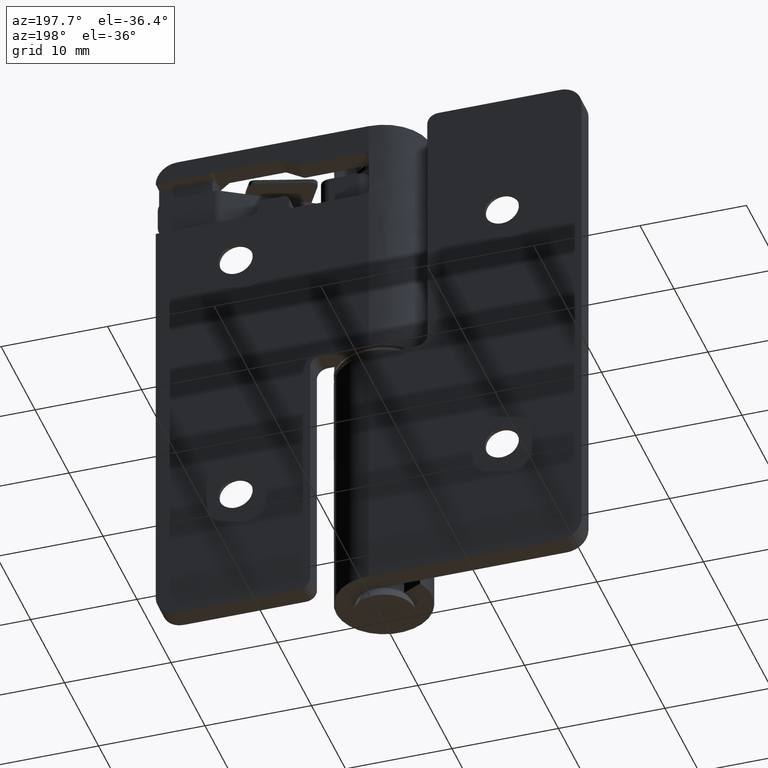
[diagram: clean part render]
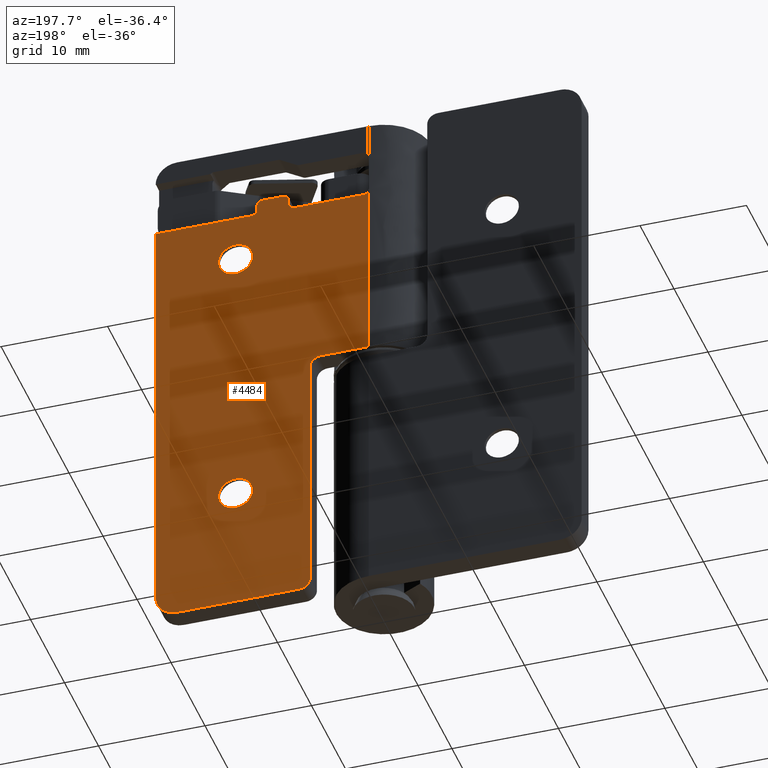
[diagram: same view with one face highlighted and labeled with its STEP entity id]
A machine part, auxiliary view. The second image highlights one B-rep face of the part: STEP entity #4484.
In plain terms, the highlighted face is a freeform B-spline surface patch.
Its self-contained STEP definition (entity closure, byte-faithful):
#2897=CARTESIAN_POINT('',(14.097015677449971,4.500000000000000,12.097677663364079));
#2898=VERTEX_POINT('',#2897);
#2899=CARTESIAN_POINT('',(12.499999999990701,4.500000000000000,10.400000000009079));
#2900=VERTEX_POINT('',#2899);
#2901=CARTESIAN_POINT('',(14.097015677449969,4.500000000000000,12.097677663364077));
#2902=CARTESIAN_POINT('',(14.099999999981623,4.500000000000000,12.048884421332048));
#2903=CARTESIAN_POINT('',(14.099999999981620,4.500000000000000,12.0));
#2904=CARTESIAN_POINT('',(14.099999999981623,4.500000000000000,10.400000000009076));
#2905=CARTESIAN_POINT('',(12.499999999990701,4.500000000000000,10.400000000009079));
#2913=(BOUNDED_CURVE()B_SPLINE_CURVE(2,(#2901,#2902,#2903,#2904,#2905),.UNSPECIFIED.,.F.,.U.)B_SPLINE_CURVE_WITH_KNOTS((3,2,3),(0.239332962230207,0.250000000000000,0.500000000000000),.UNSPECIFIED.)CURVE()GEOMETRIC_REPRESENTATION_ITEM()RATIONAL_B_SPLINE_CURVE((0.976072041647994,0.987502787889602,1.0,0.707106781186548,1.0))REPRESENTATION_ITEM(''));
#2914=EDGE_CURVE('',#2898,#2900,#2913,.T.);
#2916=CARTESIAN_POINT('',(10.902984322531429,4.500000000000000,11.902322336635921));
#2917=VERTEX_POINT('',#2916);
#2918=CARTESIAN_POINT('',(12.499999999990701,4.500000000000000,10.400000000009079));
#2919=CARTESIAN_POINT('',(10.994870293052916,4.500000000000000,10.400000000009074));
#2920=CARTESIAN_POINT('',(10.902984322531431,4.500000000000000,11.902322336635919));
#2928=(BOUNDED_CURVE()B_SPLINE_CURVE(2,(#2918,#2919,#2920),.UNSPECIFIED.,.F.,.U.)B_SPLINE_CURVE_WITH_KNOTS((3,3),(0.500000000000000,0.739332962230206),.UNSPECIFIED.)CURVE()GEOMETRIC_REPRESENTATION_ITEM()RATIONAL_B_SPLINE_CURVE((1.0,0.719603993296946,0.976072041647994))REPRESENTATION_ITEM(''));
#2929=EDGE_CURVE('',#2900,#2917,#2928,.T.);
#2996=CARTESIAN_POINT('',(12.499999999990701,4.500000000000000,13.599999999990921));
#2997=VERTEX_POINT('',#2996);
#2998=CARTESIAN_POINT('',(12.499999999990701,4.500000000000000,13.599999999990921));
#2999=CARTESIAN_POINT('',(14.005129706928486,4.500000000000000,13.599999999990924));
#3000=CARTESIAN_POINT('',(14.097015677449969,4.500000000000000,12.097677663364077));
#3008=(BOUNDED_CURVE()B_SPLINE_CURVE(2,(#2998,#2999,#3000),.UNSPECIFIED.,.F.,.U.)B_SPLINE_CURVE_WITH_KNOTS((3,3),(0.0,0.239332962230207),.UNSPECIFIED.)CURVE()GEOMETRIC_REPRESENTATION_ITEM()RATIONAL_B_SPLINE_CURVE((1.0,0.719603993296946,0.976072041647994))REPRESENTATION_ITEM(''));
#3009=EDGE_CURVE('',#2997,#2898,#3008,.T.);
#3043=CARTESIAN_POINT('',(10.902984322531431,4.500000000000000,11.902322336635919));
#3044=CARTESIAN_POINT('',(10.899999999999778,4.500000000000000,11.951115578667947));
#3045=CARTESIAN_POINT('',(10.899999999999780,4.500000000000000,12.0));
#3046=CARTESIAN_POINT('',(10.899999999999775,4.500000000000000,13.599999999990926));
#3047=CARTESIAN_POINT('',(12.499999999990701,4.500000000000000,13.599999999990921));
#3055=(BOUNDED_CURVE()B_SPLINE_CURVE(2,(#3043,#3044,#3045,#3046,#3047),.UNSPECIFIED.,.F.,.U.)B_SPLINE_CURVE_WITH_KNOTS((3,2,3),(0.739332962230206,0.750000000000000,1.0),.UNSPECIFIED.)CURVE()GEOMETRIC_REPRESENTATION_ITEM()RATIONAL_B_SPLINE_CURVE((0.976072041647994,0.987502787889602,1.0,0.707106781186548,1.0))REPRESENTATION_ITEM(''));
#3056=EDGE_CURVE('',#2917,#2997,#3055,.T.);
#3209=CARTESIAN_POINT('',(14.097015677449971,4.500000000000000,38.097677663364081));
#3210=VERTEX_POINT('',#3209);
#3211=CARTESIAN_POINT('',(12.499999999990701,4.500000000000000,36.400000000009072));
#3212=VERTEX_POINT('',#3211);
#3213=CARTESIAN_POINT('',(14.097015677449969,4.500000000000000,38.097677663364081));
#3214=CARTESIAN_POINT('',(14.099999999981627,4.500000000000000,38.048884421332041));
#3215=CARTESIAN_POINT('',(14.099999999981620,4.500000000000000,38.0));
#3216=CARTESIAN_POINT('',(14.099999999981623,4.500000000000000,36.400000000009072));
#3217=CARTESIAN_POINT('',(12.499999999990701,4.500000000000000,36.400000000009072));
#3225=(BOUNDED_CURVE()B_SPLINE_CURVE(2,(#3213,#3214,#3215,#3216,#3217),.UNSPECIFIED.,.F.,.U.)B_SPLINE_CURVE_WITH_KNOTS((3,2,3),(0.239332962230206,0.250000000000000,0.500000000000000),.UNSPECIFIED.)CURVE()GEOMETRIC_REPRESENTATION_ITEM()RATIONAL_B_SPLINE_CURVE((0.976072041647992,0.987502787889601,1.0,0.707106781186548,1.0))REPRESENTATION_ITEM(''));
#3226=EDGE_CURVE('',#3210,#3212,#3225,.T.);
#3228=CARTESIAN_POINT('',(10.902984322531429,4.500000000000000,37.902322336635919));
#3229=VERTEX_POINT('',#3228);
#3230=CARTESIAN_POINT('',(12.499999999990701,4.500000000000000,36.400000000009072));
#3231=CARTESIAN_POINT('',(10.994870293052916,4.500000000000000,36.400000000009079));
#3232=CARTESIAN_POINT('',(10.902984322531431,4.500000000000000,37.902322336635919));
#3240=(BOUNDED_CURVE()B_SPLINE_CURVE(2,(#3230,#3231,#3232),.UNSPECIFIED.,.F.,.U.)B_SPLINE_CURVE_WITH_KNOTS((3,3),(0.500000000000000,0.739332962230206),.UNSPECIFIED.)CURVE()GEOMETRIC_REPRESENTATION_ITEM()RATIONAL_B_SPLINE_CURVE((1.0,0.719603993296946,0.976072041647994))REPRESENTATION_ITEM(''));
#3241=EDGE_CURVE('',#3212,#3229,#3240,.T.);
#3308=CARTESIAN_POINT('',(12.499999999990701,4.500000000000000,39.599999999990928));
#3309=VERTEX_POINT('',#3308);
#3310=CARTESIAN_POINT('',(12.499999999990701,4.500000000000000,39.599999999990928));
#3311=CARTESIAN_POINT('',(14.005129706928484,4.499999999999999,39.599999999990928));
#3312=CARTESIAN_POINT('',(14.097015677449972,4.500000000000000,38.097677663364074));
#3320=(BOUNDED_CURVE()B_SPLINE_CURVE(2,(#3310,#3311,#3312),.UNSPECIFIED.,.F.,.U.)B_SPLINE_CURVE_WITH_KNOTS((3,3),(0.0,0.239332962230206),.UNSPECIFIED.)CURVE()GEOMETRIC_REPRESENTATION_ITEM()RATIONAL_B_SPLINE_CURVE((1.0,0.719603993296946,0.976072041647994))REPRESENTATION_ITEM(''));
#3321=EDGE_CURVE('',#3309,#3210,#3320,.T.);
#3355=CARTESIAN_POINT('',(10.902984322531427,4.500000000000001,37.902322336635926));
#3356=CARTESIAN_POINT('',(10.899999999999777,4.500000000000000,37.951115578667952));
#3357=CARTESIAN_POINT('',(10.899999999999780,4.500000000000000,38.0));
#3358=CARTESIAN_POINT('',(10.899999999999775,4.500000000000000,39.599999999990928));
#3359=CARTESIAN_POINT('',(12.499999999990701,4.500000000000000,39.599999999990928));
#3367=(BOUNDED_CURVE()B_SPLINE_CURVE(2,(#3355,#3356,#3357,#3358,#3359),.UNSPECIFIED.,.F.,.U.)B_SPLINE_CURVE_WITH_KNOTS((3,2,3),(0.739332962230207,0.750000000000000,1.0),.UNSPECIFIED.)CURVE()GEOMETRIC_REPRESENTATION_ITEM()RATIONAL_B_SPLINE_CURVE((0.976072041647994,0.987502787889602,1.0,0.707106781186548,1.0))REPRESENTATION_ITEM(''));
#3368=EDGE_CURVE('',#3229,#3309,#3367,.T.);
#3534=CARTESIAN_POINT('',(17.999999999990600,4.500000000000000,0.0));
#3535=VERTEX_POINT('',#3534);
#3541=CARTESIAN_POINT('',(19.999999999990600,4.500000000000000,2.0));
#3542=VERTEX_POINT('',#3541);
#3543=CARTESIAN_POINT('',(19.999999999990600,4.500000000000000,2.0));
#3544=CARTESIAN_POINT('',(19.999999999990607,4.500000000000000,0.0));
#3545=CARTESIAN_POINT('',(17.999999999990600,4.500000000000000,0.0));
#3553=(BOUNDED_CURVE()B_SPLINE_CURVE(2,(#3543,#3544,#3545),.UNSPECIFIED.,.F.,.U.)CURVE()GEOMETRIC_REPRESENTATION_ITEM()QUASI_UNIFORM_CURVE()RATIONAL_B_SPLINE_CURVE((1.0,0.707106781186548,1.0))REPRESENTATION_ITEM(''));
#3554=EDGE_CURVE('',#3542,#3535,#3553,.T.);
#3623=CARTESIAN_POINT('',(7.000000000071401,4.499999999999949,42.499999999999098));
#3624=VERTEX_POINT('',#3623);
#3625=CARTESIAN_POINT('',(0.500000000000114,4.499999999999949,42.499999999998550));
#3626=VERTEX_POINT('',#3625);
#3627=CARTESIAN_POINT('',(7.000000000071401,4.499999999999949,42.499999999999098));
#3628=CARTESIAN_POINT('',(0.500000000000114,4.499999999999949,42.499999999998550));
#3629=QUASI_UNIFORM_CURVE('',1,(#3627,#3628),.UNSPECIFIED.,.F.,.U.);
#3630=EDGE_CURVE('',#3624,#3626,#3629,.T.);
#3668=CARTESIAN_POINT('',(7.500000000071450,4.499999999999949,42.999999999999112));
#3669=VERTEX_POINT('',#3668);
#3670=CARTESIAN_POINT('',(7.000000000071401,4.499999999999949,42.499999999999098));
#3671=CARTESIAN_POINT('',(7.500000000071402,4.499999999999949,42.499999999999105));
#3672=CARTESIAN_POINT('',(7.500000000071401,4.499999999999949,42.999999999999112));
#3680=(BOUNDED_CURVE()B_SPLINE_CURVE(2,(#3670,#3671,#3672),.UNSPECIFIED.,.F.,.U.)CURVE()GEOMETRIC_REPRESENTATION_ITEM()QUASI_UNIFORM_CURVE()RATIONAL_B_SPLINE_CURVE((1.0,0.707106781186548,1.0))REPRESENTATION_ITEM(''));
#3681=EDGE_CURVE('',#3624,#3669,#3680,.T.);
#3712=CARTESIAN_POINT('',(7.500000000071450,4.499999999999949,43.500000000000000));
#3713=VERTEX_POINT('',#3712);
#3714=CARTESIAN_POINT('',(7.500000000071450,4.499999999999949,43.500000000000000));
#3715=CARTESIAN_POINT('',(7.500000000071450,4.499999999999949,42.999999999999112));
#3716=QUASI_UNIFORM_CURVE('',1,(#3714,#3715),.UNSPECIFIED.,.F.,.U.);
#3717=EDGE_CURVE('',#3713,#3669,#3716,.T.);
#3749=CARTESIAN_POINT('',(8.000000000071450,4.499999999999949,44.0));
#3750=VERTEX_POINT('',#3749);
#3751=CARTESIAN_POINT('',(8.000000000071450,4.499999999999949,44.0));
#3752=CARTESIAN_POINT('',(7.500000000071449,4.499999999999949,43.999999999999993));
#3753=CARTESIAN_POINT('',(7.500000000071450,4.499999999999949,43.500000000000000));
#3761=(BOUNDED_CURVE()B_SPLINE_CURVE(2,(#3751,#3752,#3753),.UNSPECIFIED.,.F.,.U.)CURVE()GEOMETRIC_REPRESENTATION_ITEM()QUASI_UNIFORM_CURVE()RATIONAL_B_SPLINE_CURVE((1.0,0.707106781186548,1.0))REPRESENTATION_ITEM(''));
#3762=EDGE_CURVE('',#3750,#3713,#3761,.T.);
#3793=CARTESIAN_POINT('',(9.999999999851578,4.499999999999949,44.0));
#3794=VERTEX_POINT('',#3793);
#3795=CARTESIAN_POINT('',(9.999999999851578,4.499999999999949,44.0));
#3796=CARTESIAN_POINT('',(8.000000000071450,4.499999999999949,44.0));
#3797=QUASI_UNIFORM_CURVE('',1,(#3795,#3796),.UNSPECIFIED.,.F.,.U.);
#3798=EDGE_CURVE('',#3794,#3750,#3797,.T.);
#3830=CARTESIAN_POINT('',(10.499999999851580,4.499999999999949,43.500000000000000));
#3831=VERTEX_POINT('',#3830);
#3832=CARTESIAN_POINT('',(10.499999999851580,4.499999999999949,43.500000000000000));
#3833=CARTESIAN_POINT('',(10.499999999851582,4.499999999999949,43.999999999999993));
#3834=CARTESIAN_POINT('',(9.999999999851578,4.499999999999949,44.0));
#3842=(BOUNDED_CURVE()B_SPLINE_CURVE(2,(#3832,#3833,#3834),.UNSPECIFIED.,.F.,.U.)CURVE()GEOMETRIC_REPRESENTATION_ITEM()QUASI_UNIFORM_CURVE()RATIONAL_B_SPLINE_CURVE((1.0,0.707106781186548,1.0))REPRESENTATION_ITEM(''));
#3843=EDGE_CURVE('',#3831,#3794,#3842,.T.);
#3874=CARTESIAN_POINT('',(10.499999999851459,4.499999999999949,43.0));
#3875=VERTEX_POINT('',#3874);
#3876=CARTESIAN_POINT('',(10.499999999851459,4.499999999999949,43.0));
#3877=CARTESIAN_POINT('',(10.499999999851580,4.499999999999949,43.500000000000000));
#3878=QUASI_UNIFORM_CURVE('',1,(#3876,#3877),.UNSPECIFIED.,.F.,.U.);
#3879=EDGE_CURVE('',#3875,#3831,#3878,.T.);
#3911=CARTESIAN_POINT('',(10.999999999851520,4.499999999999949,42.500000000000000));
#3912=VERTEX_POINT('',#3911);
#3913=CARTESIAN_POINT('',(10.499999999851459,4.499999999999949,43.0));
#3914=CARTESIAN_POINT('',(10.499895243046570,4.499999999999943,42.926340255124927));
#3915=CARTESIAN_POINT('',(10.524861375663709,4.499999999999967,42.816023274142182));
#3916=CARTESIAN_POINT('',(10.615534530161151,4.499999999999924,42.668809067910352));
#3917=CARTESIAN_POINT('',(10.715258858822420,4.499999999999995,42.580648484700802));
#3918=CARTESIAN_POINT('',(10.852765150053241,4.499999999999888,42.515639666869653));
#3919=CARTESIAN_POINT('',(10.942726200604749,4.500000000000045,42.499962074698502));
#3920=CARTESIAN_POINT('',(10.999999999851520,4.499999999999949,42.500000000000000));
#3921=B_SPLINE_CURVE_WITH_KNOTS('',3,(#3913,#3914,#3915,#3916,#3917,#3918,#3919,#3920),.UNSPECIFIED.,.F.,.U.,(4,1,1,1,1,4),(0.000000123584844,0.220901045036080,0.331349090110699,0.515429622533247,0.613609919338544,0.785417872190484),.UNSPECIFIED.);
#3922=EDGE_CURVE('',#3875,#3912,#3921,.T.);
#3987=CARTESIAN_POINT('',(20.0,4.500000000005170,42.500000000000547));
#3988=VERTEX_POINT('',#3987);
#3994=CARTESIAN_POINT('',(20.0,4.500000000005170,42.500000000000547));
#3995=CARTESIAN_POINT('',(10.999999999851520,4.499999999999949,42.500000000000000));
#3996=QUASI_UNIFORM_CURVE('',1,(#3994,#3995),.UNSPECIFIED.,.F.,.U.);
#3997=EDGE_CURVE('',#3988,#3912,#3996,.T.);
#4034=CARTESIAN_POINT('',(5.500000000000000,4.499999999999949,1.0));
#4035=VERTEX_POINT('',#4034);
#4041=CARTESIAN_POINT('',(6.500000000000000,4.500000000000000,0.0));
#4042=VERTEX_POINT('',#4041);
#4043=CARTESIAN_POINT('',(6.500000000000000,4.500000000000000,0.0));
#4044=CARTESIAN_POINT('',(5.500000000000001,4.500000000000000,0.0));
#4045=CARTESIAN_POINT('',(5.500000000000000,4.500000000000000,1.0));
#4053=(BOUNDED_CURVE()B_SPLINE_CURVE(2,(#4043,#4044,#4045),.UNSPECIFIED.,.F.,.U.)CURVE()GEOMETRIC_REPRESENTATION_ITEM()QUASI_UNIFORM_CURVE()RATIONAL_B_SPLINE_CURVE((1.0,0.707106781186548,1.0))REPRESENTATION_ITEM(''));
#4054=EDGE_CURVE('',#4042,#4035,#4053,.T.);
#4069=CARTESIAN_POINT('',(5.500000000000000,4.499999999999949,24.500000000000000));
#4070=VERTEX_POINT('',#4069);
#4071=CARTESIAN_POINT('',(5.500000000000000,4.499999999999949,1.0));
#4072=CARTESIAN_POINT('',(5.500000000000000,4.499999999999949,24.500000000000000));
#4073=QUASI_UNIFORM_CURVE('',1,(#4071,#4072),.UNSPECIFIED.,.F.,.U.);
#4074=EDGE_CURVE('',#4035,#4070,#4073,.T.);
#4097=CARTESIAN_POINT('',(17.999999999990600,4.500000000000000,0.0));
#4098=CARTESIAN_POINT('',(6.500000000000000,4.500000000000000,0.0));
#4099=QUASI_UNIFORM_CURVE('',1,(#4097,#4098),.UNSPECIFIED.,.F.,.U.);
#4100=EDGE_CURVE('',#3535,#4042,#4099,.T.);
#4170=CARTESIAN_POINT('',(-9.273832E-012,4.499999999999949,25.500000000000000));
#4171=VERTEX_POINT('',#4170);
#4255=CARTESIAN_POINT('',(-9.274359E-012,4.500000000000000,43.0));
#4256=VERTEX_POINT('',#4255);
#4262=CARTESIAN_POINT('',(-9.273832E-012,4.499999999999949,25.500000000000000));
#4263=CARTESIAN_POINT('',(-9.274359E-012,4.500000000000000,43.0));
#4264=QUASI_UNIFORM_CURVE('',1,(#4262,#4263),.UNSPECIFIED.,.F.,.U.);
#4265=EDGE_CURVE('',#4171,#4256,#4264,.T.);
#4376=CARTESIAN_POINT('',(19.999999999990600,4.500000000000000,2.0));
#4377=CARTESIAN_POINT('',(20.0,4.500000000005170,42.500000000000547));
#4378=QUASI_UNIFORM_CURVE('',1,(#4376,#4377),.UNSPECIFIED.,.F.,.U.);
#4379=EDGE_CURVE('',#3542,#3988,#4378,.T.);
#4419=CARTESIAN_POINT('',(-0.998999961245857,4.500000000000000,-2.197799914719461));
#4420=CARTESIAN_POINT('',(-0.998999961245857,4.500000000000000,46.197801094891432));
#4421=CARTESIAN_POINT('',(20.999000497678381,4.500000000000000,-2.197799914719461));
#4422=CARTESIAN_POINT('',(20.999000497678381,4.500000000000000,46.197801094891432));
#4423=B_SPLINE_SURFACE_WITH_KNOTS('',1,1,((#4419,#4421),(#4420,#4422)),.UNSPECIFIED.,.F.,.F.,.U.,(2,2),(2,2),(0.0,48.395601009610893),(0.0,21.998000458924238),.UNSPECIFIED.);
#4424=ORIENTED_EDGE('',*,*,#4379,.F.);
#4425=ORIENTED_EDGE('',*,*,#3554,.T.);
#4426=ORIENTED_EDGE('',*,*,#4100,.T.);
#4427=ORIENTED_EDGE('',*,*,#4054,.T.);
#4428=ORIENTED_EDGE('',*,*,#4074,.T.);
#4429=CARTESIAN_POINT('',(4.500000000000000,4.499999999999949,25.500000000000000));
#4430=VERTEX_POINT('',#4429);
#4431=CARTESIAN_POINT('',(5.500000000000000,4.499999999999949,24.500000000000000));
#4432=CARTESIAN_POINT('',(5.500000000000001,4.499999999999949,25.500000000000007));
#4433=CARTESIAN_POINT('',(4.500000000000000,4.499999999999949,25.500000000000000));
#4441=(BOUNDED_CURVE()B_SPLINE_CURVE(2,(#4431,#4432,#4433),.UNSPECIFIED.,.F.,.U.)CURVE()GEOMETRIC_REPRESENTATION_ITEM()QUASI_UNIFORM_CURVE()RATIONAL_B_SPLINE_CURVE((1.0,0.707106781186548,1.0))REPRESENTATION_ITEM(''));
#4442=EDGE_CURVE('',#4070,#4430,#4441,.T.);
#4443=ORIENTED_EDGE('',*,*,#4442,.T.);
#4444=CARTESIAN_POINT('',(4.500000000000000,4.499999999999949,25.500000000000000));
#4445=CARTESIAN_POINT('',(-9.273832E-012,4.499999999999949,25.500000000000000));
#4446=QUASI_UNIFORM_CURVE('',1,(#4444,#4445),.UNSPECIFIED.,.F.,.U.);
#4447=EDGE_CURVE('',#4430,#4171,#4446,.T.);
#4448=ORIENTED_EDGE('',*,*,#4447,.T.);
#4449=ORIENTED_EDGE('',*,*,#4265,.T.);
#4450=CARTESIAN_POINT('',(-9.274359E-012,4.500000000000000,43.0));
#4451=CARTESIAN_POINT('',(-0.000117153158216,4.499999999999996,42.926342766068352));
#4452=CARTESIAN_POINT('',(0.024858717332973,4.499999999999929,42.816006695912129));
#4453=CARTESIAN_POINT('',(0.109082641837955,4.499999999999977,42.679357129144897));
#4454=CARTESIAN_POINT('',(0.210883868369985,4.499999999999931,42.582386289606532));
#4455=CARTESIAN_POINT('',(0.348654182730370,4.499999999999950,42.515173638966992));
#4456=CARTESIAN_POINT('',(0.450911274629749,4.499999999999960,42.499979929019233));
#4457=CARTESIAN_POINT('',(0.500000000000114,4.499999999999949,42.499999999998550));
#4458=B_SPLINE_CURVE_WITH_KNOTS('',3,(#4450,#4451,#4452,#4453,#4454,#4455,#4456,#4457),.UNSPECIFIED.,.F.,.U.,(4,1,1,1,1,4),(0.000000123591650,0.220901045041652,0.331349090115909,0.478606520119124,0.638154642857019,0.785417872192824),.UNSPECIFIED.);
#4459=EDGE_CURVE('',#4256,#3626,#4458,.T.);
#4460=ORIENTED_EDGE('',*,*,#4459,.T.);
#4461=ORIENTED_EDGE('',*,*,#3630,.F.);
#4462=ORIENTED_EDGE('',*,*,#3681,.T.);
#4463=ORIENTED_EDGE('',*,*,#3717,.F.);
#4464=ORIENTED_EDGE('',*,*,#3762,.F.);
#4465=ORIENTED_EDGE('',*,*,#3798,.F.);
#4466=ORIENTED_EDGE('',*,*,#3843,.F.);
#4467=ORIENTED_EDGE('',*,*,#3879,.F.);
#4468=ORIENTED_EDGE('',*,*,#3922,.T.);
#4469=ORIENTED_EDGE('',*,*,#3997,.F.);
#4470=EDGE_LOOP('',(#4424,#4425,#4426,#4427,#4428,#4443,#4448,#4449,#4460,#4461,#4462,#4463,#4464,#4465,#4466,#4467,#4468,#4469));
#4471=FACE_OUTER_BOUND('',#4470,.T.);
#4472=ORIENTED_EDGE('',*,*,#3241,.F.);
#4473=ORIENTED_EDGE('',*,*,#3226,.F.);
#4474=ORIENTED_EDGE('',*,*,#3321,.F.);
#4475=ORIENTED_EDGE('',*,*,#3368,.F.);
#4476=EDGE_LOOP('',(#4472,#4473,#4474,#4475));
#4477=FACE_BOUND('',#4476,.T.);
#4478=ORIENTED_EDGE('',*,*,#2929,.F.);
#4479=ORIENTED_EDGE('',*,*,#2914,.F.);
#4480=ORIENTED_EDGE('',*,*,#3009,.F.);
#4481=ORIENTED_EDGE('',*,*,#3056,.F.);
#4482=EDGE_LOOP('',(#4478,#4479,#4480,#4481));
#4483=FACE_BOUND('',#4482,.T.);
#4484=ADVANCED_FACE('',(#4471,#4477,#4483),#4423,.T.);